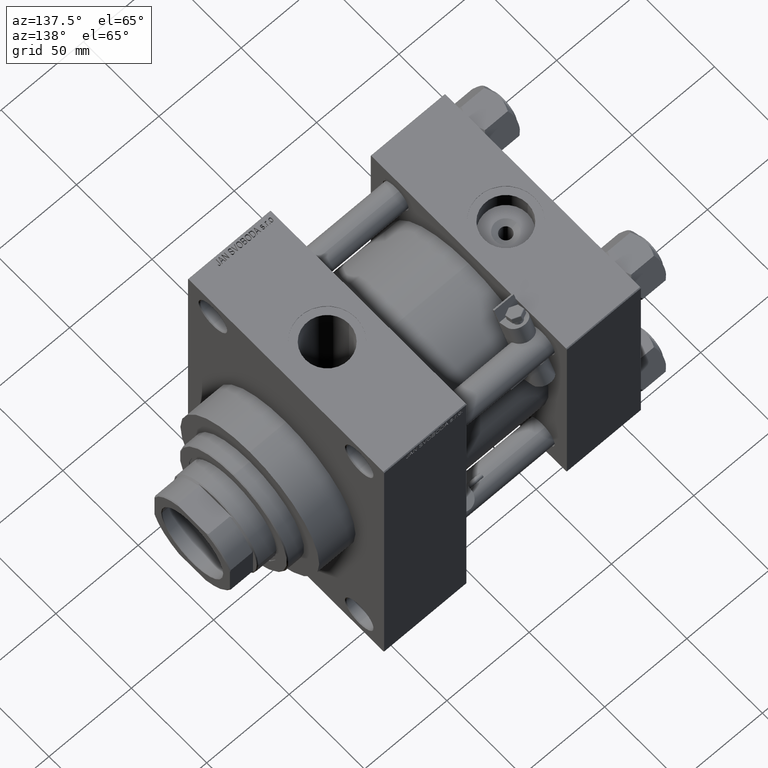
[diagram: clean part render]
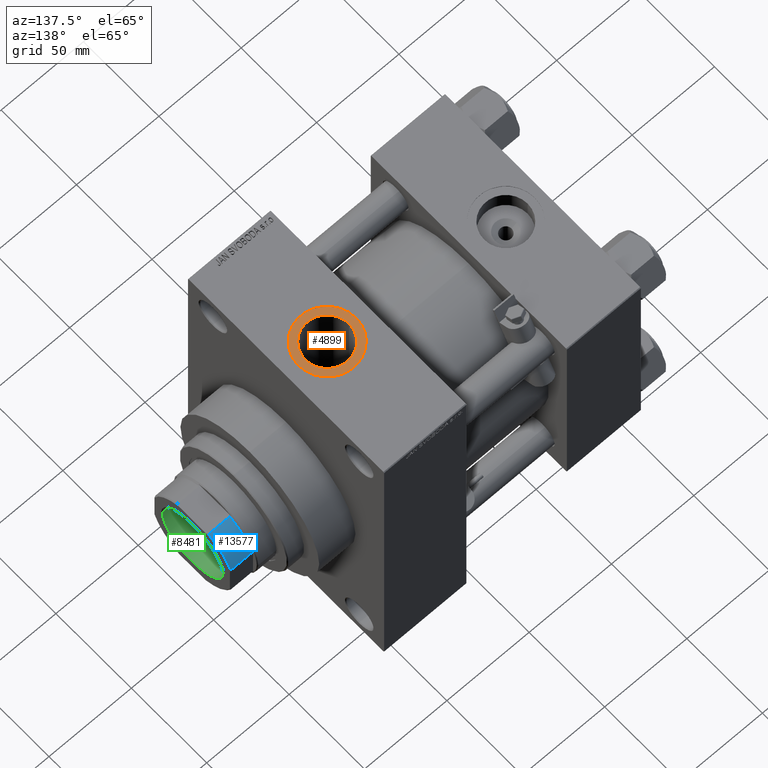
[diagram: same view with three faces highlighted in distinct colors, each labeled with its STEP entity id]
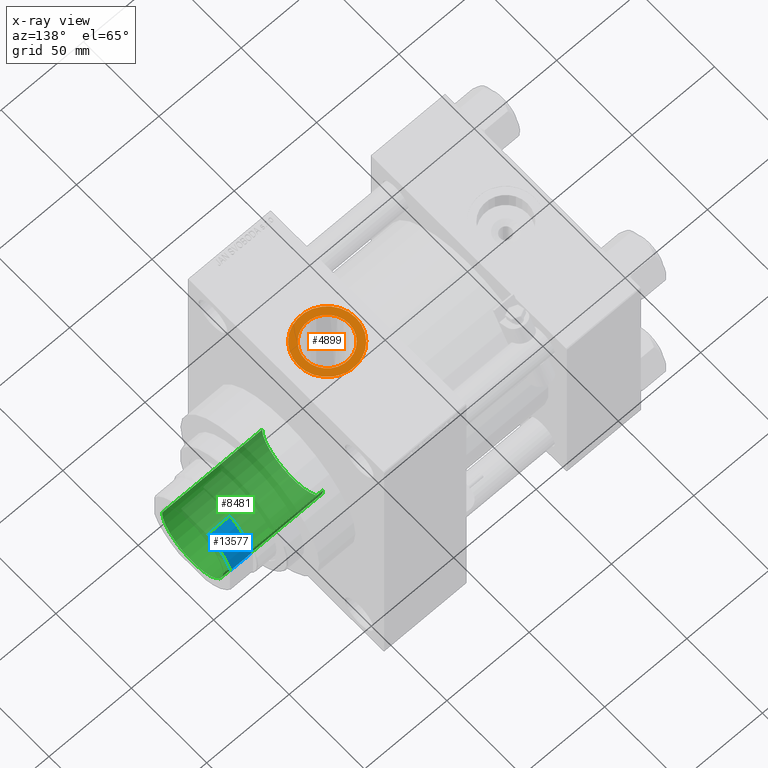
[diagram: x-ray of the same camera — body ghosted, the three highlighted faces saturated]
A machine part, auxiliary view with three faces highlighted in distinct colors.
The next image is the same camera in x-ray (body ghosted, the three faces saturated) — at least one of them is partly hidden behind the body in this view.
Their STEP definitions:

[orange] entity #4899 — the highlighted planar face has unit normal (0, 0, 1).
#11 = DIRECTION ( 'NONE',  ( -0.000000000000000000, -0.000000000000000000, -1.000000000000000000 ) ) ;
#748 = PLANE ( 'NONE',  #33745 ) ;
#819 = DIRECTION ( 'NONE',  ( 1.000000000000000000, 0.000000000000000000, 0.000000000000000000 ) ) ;
#1359 = VERTEX_POINT ( 'NONE', #5014 ) ;
#1630 = VERTEX_POINT ( 'NONE', #14868 ) ;
#3010 = CIRCLE ( 'NONE', #30613, 13.22000000000000952 ) ;
#4899 = ADVANCED_FACE ( 'NONE', ( #8627, #23673 ), #748, .T. ) ;
#4910 = CARTESIAN_POINT ( 'NONE',  ( 131.0000000000000000, 0.000000000000000000, 94.79999999999996874 ) ) ;
#5014 = CARTESIAN_POINT ( 'NONE',  ( 148.5000000000000284, 0.000000000000000000, 94.79999999999996874 ) ) ;
#5077 = ORIENTED_EDGE ( 'NONE', *, *, #8692, .T. ) ;
#5160 = DIRECTION ( 'NONE',  ( 0.000000000000000000, 0.000000000000000000, 1.000000000000000000 ) ) ;
#5287 = CIRCLE ( 'NONE', #32855, 13.22000000000000952 ) ;
#7038 = VERTEX_POINT ( 'NONE', #25411 ) ;
#8621 = DIRECTION ( 'NONE',  ( 1.000000000000000000, 0.000000000000000000, 0.000000000000000000 ) ) ;
#8627 = FACE_BOUND ( 'NONE', #44305, .T. ) ;
#8692 = EDGE_CURVE ( 'NONE', #46253, #1630, #3010, .T. ) ;
#8856 = CARTESIAN_POINT ( 'NONE',  ( 131.0000000000000000, 0.000000000000000000, 94.79999999999996874 ) ) ;
#10094 = ORIENTED_EDGE ( 'NONE', *, *, #26613, .T. ) ;
#11613 = DIRECTION ( 'NONE',  ( 1.000000000000000000, 0.000000000000000000, 0.000000000000000000 ) ) ;
#11695 = DIRECTION ( 'NONE',  ( -0.000000000000000000, -0.000000000000000000, -1.000000000000000000 ) ) ;
#14868 = CARTESIAN_POINT ( 'NONE',  ( 144.2200000000000273, 1.618983068472802926E-15, 94.79999999999996874 ) ) ;
#19516 = DIRECTION ( 'NONE',  ( 1.000000000000000000, 0.000000000000000000, 0.000000000000000000 ) ) ;
#23211 = DIRECTION ( 'NONE',  ( 0.000000000000000000, 0.000000000000000000, 1.000000000000000000 ) ) ;
#23673 = FACE_OUTER_BOUND ( 'NONE', #32707, .T. ) ;
#24498 = ORIENTED_EDGE ( 'NONE', *, *, #30043, .T. ) ;
#25411 = CARTESIAN_POINT ( 'NONE',  ( 113.4999999999999858, 2.143131898507871404E-15, 94.79999999999996874 ) ) ;
#26613 = EDGE_CURVE ( 'NONE', #7038, #1359, #31950, .T. ) ;
#26987 = ORIENTED_EDGE ( 'NONE', *, *, #46099, .T. ) ;
#30043 = EDGE_CURVE ( 'NONE', #1630, #46253, #5287, .T. ) ;
#30367 = CARTESIAN_POINT ( 'NONE',  ( 131.0000000000000000, 0.000000000000000000, 94.79999999999996874 ) ) ;
#30613 = AXIS2_PLACEMENT_3D ( 'NONE', #45517, #11695, #819 ) ;
#30619 = DIRECTION ( 'NONE',  ( 1.000000000000000000, 0.000000000000000000, -0.000000000000000000 ) ) ;
#31950 = CIRCLE ( 'NONE', #48534, 17.50000000000001421 ) ;
#32707 = EDGE_LOOP ( 'NONE', ( #26987, #10094 ) ) ;
#32855 = AXIS2_PLACEMENT_3D ( 'NONE', #30367, #11, #11613 ) ;
#33581 = CARTESIAN_POINT ( 'NONE',  ( 131.0000000000000000, 0.000000000000000000, 94.79999999999996874 ) ) ;
#33745 = AXIS2_PLACEMENT_3D ( 'NONE', #8856, #5160, #30619 ) ;
#35743 = CARTESIAN_POINT ( 'NONE',  ( 117.7800000000000011, 0.000000000000000000, 94.79999999999996874 ) ) ;
#36614 = AXIS2_PLACEMENT_3D ( 'NONE', #4910, #46143, #8621 ) ;
#44305 = EDGE_LOOP ( 'NONE', ( #5077, #24498 ) ) ;
#45517 = CARTESIAN_POINT ( 'NONE',  ( 131.0000000000000000, 0.000000000000000000, 94.79999999999996874 ) ) ;
#46099 = EDGE_CURVE ( 'NONE', #1359, #7038, #46878, .T. ) ;
#46143 = DIRECTION ( 'NONE',  ( 0.000000000000000000, 0.000000000000000000, 1.000000000000000000 ) ) ;
#46253 = VERTEX_POINT ( 'NONE', #35743 ) ;
#46878 = CIRCLE ( 'NONE', #36614, 17.50000000000001421 ) ;
#48534 = AXIS2_PLACEMENT_3D ( 'NONE', #33581, #23211, #19516 ) ;

[blue] entity #13577 — the highlighted cylindrical surface (partial cylindrical patch) has radius 27 mm, axis along (1, 0, 0).
#951 = EDGE_CURVE ( 'NONE', #39792, #5547, #25066, .T. ) ;
#956 = CARTESIAN_POINT ( 'NONE',  ( -25.00000000000000000, -10.19803902718555300, 154.5000000000000000 ) ) ;
#1307 = VECTOR ( 'NONE', #25305, 1000.000000000000000 ) ;
#1993 = VERTEX_POINT ( 'NONE', #956 ) ;
#5547 = VERTEX_POINT ( 'NONE', #42832 ) ;
#5986 = DIRECTION ( 'NONE',  ( -0.000000000000000000, -0.000000000000000000, 1.000000000000000000 ) ) ;
#6422 = CARTESIAN_POINT ( 'NONE',  ( 0.000000000000000000, 0.000000000000000000, -0.001000000000001000089 ) ) ;
#6545 = CARTESIAN_POINT ( 'NONE',  ( 0.000000000000000000, 0.000000000000000000, 154.5000000000000000 ) ) ;
#6908 = ORIENTED_EDGE ( 'NONE', *, *, #12045, .T. ) ;
#7051 = ORIENTED_EDGE ( 'NONE', *, *, #951, .T. ) ;
#7142 = DIRECTION ( 'NONE',  ( 1.000000000000000000, 8.881784197001252323E-16, 0.000000000000000000 ) ) ;
#10008 = CARTESIAN_POINT ( 'NONE',  ( -25.00000000000000000, -10.19803902718555300, -0.001000000000001000089 ) ) ;
#10251 = LINE ( 'NONE', #10008, #1307 ) ;
#12045 = EDGE_CURVE ( 'NONE', #1993, #36774, #18305, .T. ) ;
#13319 = CARTESIAN_POINT ( 'NONE',  ( 0.000000000000000000, 0.000000000000000000, 167.4999999999999716 ) ) ;
#13561 = AXIS2_PLACEMENT_3D ( 'NONE', #6545, #48268, #40619 ) ;
#13576 = FACE_OUTER_BOUND ( 'NONE', #46819, .T. ) ;
#13577 = ADVANCED_FACE ( 'NONE', ( #13576 ), #13823, .T. ) ;
#13823 = CYLINDRICAL_SURFACE ( 'NONE', #32410, 26.99999999999999645 ) ;
#14510 = VECTOR ( 'NONE', #5986, 1000.000000000000000 ) ;
#16909 = CARTESIAN_POINT ( 'NONE',  ( -10.19803902718555655, -25.00000000000000000, 154.5000000000000000 ) ) ;
#17811 = LINE ( 'NONE', #39805, #14510 ) ;
#18305 = CIRCLE ( 'NONE', #13561, 26.99999999999999645 ) ;
#19242 = DIRECTION ( 'NONE',  ( -0.000000000000000000, -0.000000000000000000, -1.000000000000000000 ) ) ;
#25066 = CIRCLE ( 'NONE', #35319, 26.99999999999999645 ) ;
#25305 = DIRECTION ( 'NONE',  ( -0.000000000000000000, -0.000000000000000000, 1.000000000000000000 ) ) ;
#26109 = EDGE_CURVE ( 'NONE', #1993, #5547, #10251, .T. ) ;
#27396 = ORIENTED_EDGE ( 'NONE', *, *, #41877, .T. ) ;
#27796 = ORIENTED_EDGE ( 'NONE', *, *, #26109, .F. ) ;
#28880 = DIRECTION ( 'NONE',  ( -0.000000000000000000, -0.000000000000000000, 1.000000000000000000 ) ) ;
#32410 = AXIS2_PLACEMENT_3D ( 'NONE', #6422, #28880, #35803 ) ;
#35319 = AXIS2_PLACEMENT_3D ( 'NONE', #13319, #19242, #7142 ) ;
#35803 = DIRECTION ( 'NONE',  ( 1.000000000000000000, 0.000000000000000000, 0.000000000000000000 ) ) ;
#36774 = VERTEX_POINT ( 'NONE', #16909 ) ;
#39792 = VERTEX_POINT ( 'NONE', #48162 ) ;
#39805 = CARTESIAN_POINT ( 'NONE',  ( -10.19803902718555655, -25.00000000000000000, -0.001000000000001000089 ) ) ;
#40619 = DIRECTION ( 'NONE',  ( -1.000000000000000000, 0.000000000000000000, 0.000000000000000000 ) ) ;
#41877 = EDGE_CURVE ( 'NONE', #36774, #39792, #17811, .T. ) ;
#42832 = CARTESIAN_POINT ( 'NONE',  ( -25.00000000000000000, -10.19803902718555300, 167.4999999999999716 ) ) ;
#46819 = EDGE_LOOP ( 'NONE', ( #27396, #7051, #27796, #6908 ) ) ;
#48162 = CARTESIAN_POINT ( 'NONE',  ( -10.19803902718555655, -25.00000000000000000, 167.4999999999999716 ) ) ;
#48268 = DIRECTION ( 'NONE',  ( -0.000000000000000000, -0.000000000000000000, 1.000000000000000000 ) ) ;

[green] entity #8481 — the highlighted cylindrical surface (partial cylindrical patch) has radius 20.25 mm, axis along (1, 0, 0).
#197 = CARTESIAN_POINT ( 'NONE',  ( 20.24999999999999289, 0.000000000000000000, 168.0000000000000000 ) ) ;
#3369 = DIRECTION ( 'NONE',  ( -0.000000000000000000, -0.000000000000000000, 1.000000000000000000 ) ) ;
#4297 = AXIS2_PLACEMENT_3D ( 'NONE', #40898, #3369, #31462 ) ;
#4853 = CARTESIAN_POINT ( 'NONE',  ( 20.24999999999998934, 0.000000000000000000, 107.0000000000000142 ) ) ;
#5061 = EDGE_CURVE ( 'NONE', #13836, #46243, #34000, .T. ) ;
#5504 = CARTESIAN_POINT ( 'NONE',  ( -20.24999999999999289, 2.479909768273389511E-15, 168.0000000000000000 ) ) ;
#6039 = DIRECTION ( 'NONE',  ( 0.000000000000000000, 0.000000000000000000, 1.000000000000000000 ) ) ;
#7232 = CARTESIAN_POINT ( 'NONE',  ( 0.000000000000000000, 0.000000000000000000, 107.0000000000000142 ) ) ;
#7270 = CIRCLE ( 'NONE', #34848, 20.24999999999999289 ) ;
#7548 = FACE_OUTER_BOUND ( 'NONE', #42873, .T. ) ;
#8481 = ADVANCED_FACE ( 'NONE', ( #7548 ), #30256, .F. ) ;
#12071 = VERTEX_POINT ( 'NONE', #22090 ) ;
#13518 = CARTESIAN_POINT ( 'NONE',  ( 20.24999999999999289, 0.000000000000000000, 167.7000000000000171 ) ) ;
#13836 = VERTEX_POINT ( 'NONE', #4853 ) ;
#14804 = CARTESIAN_POINT ( 'NONE',  ( -20.24999999999998934, 2.479909768273389117E-15, 107.0000000000000142 ) ) ;
#15170 = CIRCLE ( 'NONE', #41191, 20.24999999999998934 ) ;
#15172 = EDGE_CURVE ( 'NONE', #13836, #44523, #15170, .T. ) ;
#15738 = EDGE_CURVE ( 'NONE', #46243, #12071, #7270, .T. ) ;
#16486 = ORIENTED_EDGE ( 'NONE', *, *, #15738, .T. ) ;
#22090 = CARTESIAN_POINT ( 'NONE',  ( -20.24999999999999289, 2.479909768273389511E-15, 167.7000000000000171 ) ) ;
#22291 = DIRECTION ( 'NONE',  ( -0.000000000000000000, -0.000000000000000000, 1.000000000000000000 ) ) ;
#24001 = LINE ( 'NONE', #5504, #35970 ) ;
#24323 = VECTOR ( 'NONE', #29078, 1000.000000000000000 ) ;
#24680 = EDGE_CURVE ( 'NONE', #44523, #12071, #24001, .T. ) ;
#27714 = DIRECTION ( 'NONE',  ( -0.000000000000000000, -0.000000000000000000, 1.000000000000000000 ) ) ;
#29078 = DIRECTION ( 'NONE',  ( -0.000000000000000000, -0.000000000000000000, 1.000000000000000000 ) ) ;
#30256 = CYLINDRICAL_SURFACE ( 'NONE', #4297, 20.24999999999999289 ) ;
#30596 = ORIENTED_EDGE ( 'NONE', *, *, #24680, .F. ) ;
#31462 = DIRECTION ( 'NONE',  ( 1.000000000000000000, 0.000000000000000000, 0.000000000000000000 ) ) ;
#32545 = ORIENTED_EDGE ( 'NONE', *, *, #5061, .T. ) ;
#34000 = LINE ( 'NONE', #197, #24323 ) ;
#34848 = AXIS2_PLACEMENT_3D ( 'NONE', #39856, #6039, #48489 ) ;
#35970 = VECTOR ( 'NONE', #27714, 1000.000000000000000 ) ;
#37680 = ORIENTED_EDGE ( 'NONE', *, *, #15172, .F. ) ;
#39856 = CARTESIAN_POINT ( 'NONE',  ( 0.000000000000000000, 0.000000000000000000, 167.7000000000000171 ) ) ;
#40898 = CARTESIAN_POINT ( 'NONE',  ( 0.000000000000000000, 0.000000000000000000, 168.0000000000000000 ) ) ;
#41191 = AXIS2_PLACEMENT_3D ( 'NONE', #7232, #22291, #44514 ) ;
#42873 = EDGE_LOOP ( 'NONE', ( #30596, #37680, #32545, #16486 ) ) ;
#44514 = DIRECTION ( 'NONE',  ( 1.000000000000000000, 0.000000000000000000, 0.000000000000000000 ) ) ;
#44523 = VERTEX_POINT ( 'NONE', #14804 ) ;
#46243 = VERTEX_POINT ( 'NONE', #13518 ) ;
#48489 = DIRECTION ( 'NONE',  ( 1.000000000000000000, 0.000000000000000000, 0.000000000000000000 ) ) ;